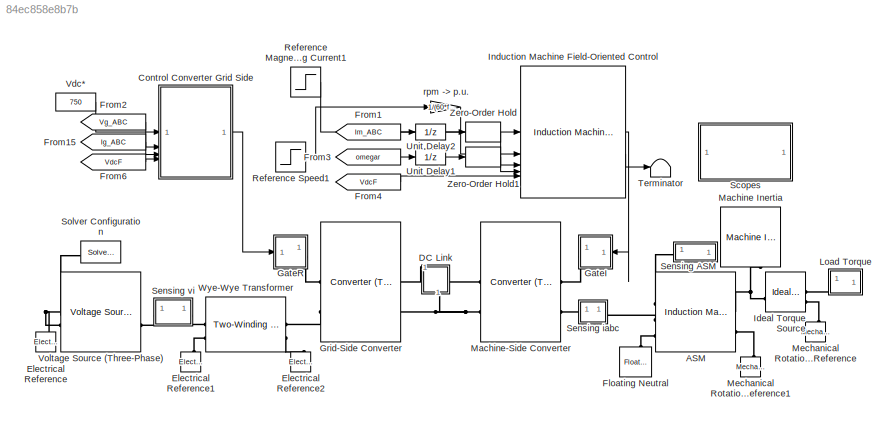
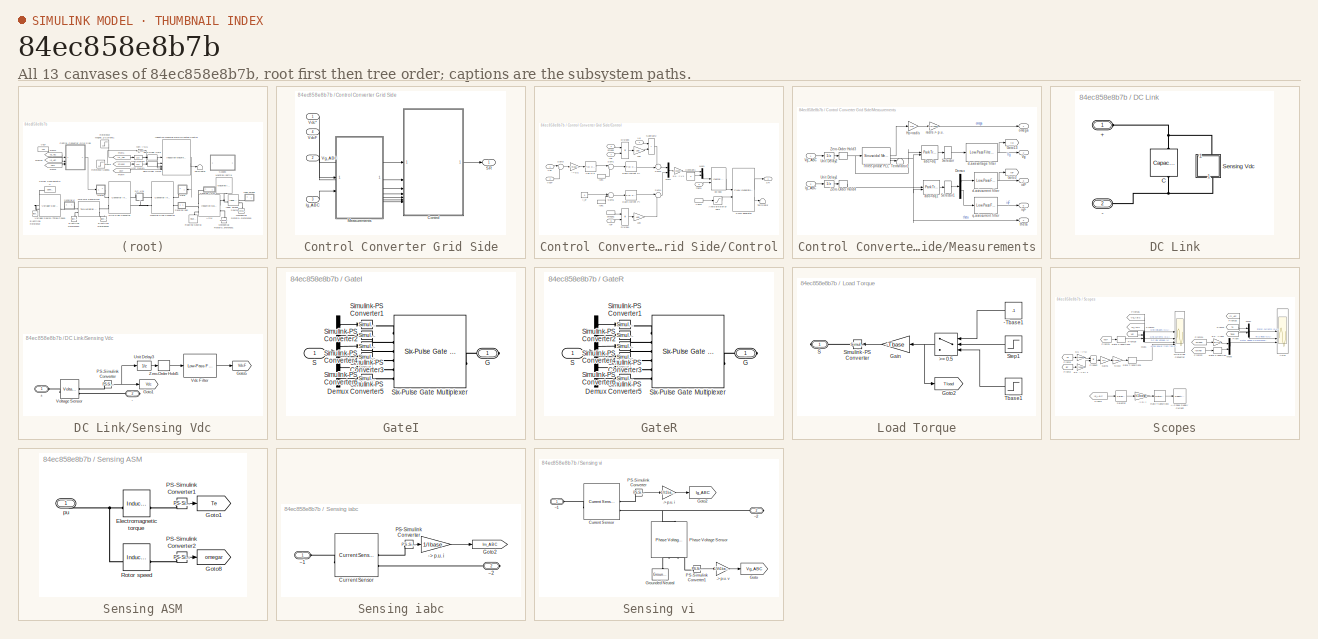
[diagram: thumbnail index - all 13 canvases of the model, root first then tree order]
MODEL slx_84ec858e8b7b
KIND model
CONFIG AbsTol = 1e-3
CONFIG EnableMultiTasking = off
CONFIG FixedStep = auto
CONFIG MaxStep = auto
CONFIG MinStep = auto
CONFIG RelTol = 1e-3
CONFIG SampleTimeConstraint = Unconstrained
CONFIG SolverName = VariableStepAuto
CONFIG StartTime = 0.0
CONFIG StopTime = 1
BLOCK [Reference] ASM  REF=ee_lib/Electromechanical/Asynchronous/Induction Machine
Squirrel Cage
  AttributesFormatString = 220 hp 550 V
  SourceBlock = ee_lib/Electromechanical/Asynchronous/Induction Machine\nSquirrel Cage
  SourceType = Induction Machine\nSquirrel Cage
BLOCK [SubSystem] Control Converter Grid Side
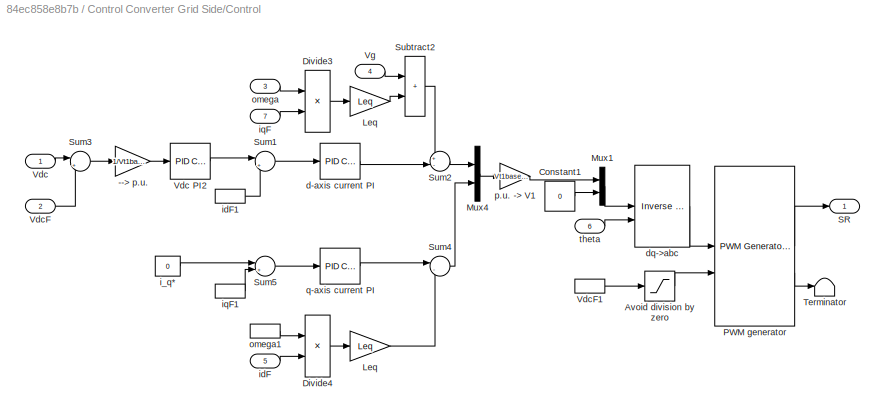
BLOCK [SubSystem] Control Converter Grid Side/Control
BLOCK [Gain] Control Converter Grid Side/Control/--> p.u.
  Gain = 1/Vt1base
BLOCK [Saturate] Control Converter Grid Side/Control/Avoid division by zero
  LowerLimit = 10
  UpperLimit = 1e6
BLOCK [Constant] Control Converter Grid Side/Control/Constant1
  SampleTime = Tsc
  Value = 0
BLOCK [Product] Control Converter Grid Side/Control/Divide3
  Inputs = **
BLOCK [Product] Control Converter Grid Side/Control/Divide4
  Inputs = **
BLOCK [Gain] Control Converter Grid Side/Control/Leq
  Gain = Leq
BLOCK [Gain] Control Converter Grid Side/Control/Leq 
  Gain = Leq
BLOCK [Mux] Control Converter Grid Side/Control/Mux1
  DisplayOption = bar
  Inputs = 2
BLOCK [Mux] Control Converter Grid Side/Control/Mux4
  DisplayOption = bar
  Inputs = 2
BLOCK [Reference] Control Converter Grid Side/Control/PWM generator  REF=eePwmGeneratorTwoLevel/PWM Generator
(Three-phase, Two-level)
  SourceBlock = eePwmGeneratorTwoLevel/PWM Generator\n(Three-phase, Two-level)
  SourceType = PWM Generator (three-phase, two-level)
BLOCK [Outport] Control Converter Grid Side/Control/SR
  VectorParamsAs1DForOutWhenUnconnected = off
BLOCK [Sum] Control Converter Grid Side/Control/Subtract2
  IconShape = rectangular
BLOCK [Sum] Control Converter Grid Side/Control/Sum1
  Inputs = |+-
BLOCK [Sum] Control Converter Grid Side/Control/Sum2
  Inputs = +-|
BLOCK [Sum] Control Converter Grid Side/Control/Sum3
  Inputs = |+-
BLOCK [Sum] Control Converter Grid Side/Control/Sum4
  Inputs = |--
BLOCK [Sum] Control Converter Grid Side/Control/Sum5
  Inputs = |+-
BLOCK [Terminator] Control Converter Grid Side/Control/Terminator
BLOCK [Inport] Control Converter Grid Side/Control/Vdc
BLOCK [Reference] Control Converter Grid Side/Control/Vdc PI2  REF=slpidlib/PID Controller
  SourceBlock = slpidlib/PID Controller
  SourceType = PID 1dof
BLOCK [Inport] Control Converter Grid Side/Control/VdcF
  Port = 2
BLOCK [InportShadow] Control Converter Grid Side/Control/VdcF1
  Port = 2
BLOCK [Inport] Control Converter Grid Side/Control/Vg
  NameLocation = top
  Port = 4
BLOCK [Reference] Control Converter Grid Side/Control/d-axis current PI  REF=slpidlib/PID Controller
  SourceBlock = slpidlib/PID Controller
  SourceType = PID 1dof
BLOCK [Reference] Control Converter Grid Side/Control/dq->abc  REF=eeTransforms/Inverse
Park Transform
  SourceBlock = eeTransforms/Inverse\nPark Transform
  SourceType = Inverse Park Transform
BLOCK [Constant] Control Converter Grid Side/Control/i_q*
  Value = 0
BLOCK [Inport] Control Converter Grid Side/Control/idF
  Port = 5
BLOCK [InportShadow] Control Converter Grid Side/Control/idF1
  Port = 5
BLOCK [Inport] Control Converter Grid Side/Control/iqF
  Port = 7
BLOCK [InportShadow] Control Converter Grid Side/Control/iqF1
  Port = 7
BLOCK [Inport] Control Converter Grid Side/Control/omega
  Port = 3
BLOCK [InportShadow] Control Converter Grid Side/Control/omega1
  Port = 3
BLOCK [Gain] Control Converter Grid Side/Control/p.u. -> V1
  Gain = Vt1base*N
BLOCK [Reference] Control Converter Grid Side/Control/q-axis current PI  REF=slpidlib/PID Controller
  SourceBlock = slpidlib/PID Controller
  SourceType = PID 1dof
BLOCK [Inport] Control Converter Grid Side/Control/theta
  Port = 6
BLOCK [Inport] Control Converter Grid Side/Ig_ABC
  Port = 3
BLOCK [SubSystem] Control Converter Grid Side/Measurements
BLOCK [Demux] Control Converter Grid Side/Measurements/Demux
  Outputs = 2
BLOCK [Goto] Control Converter Grid Side/Measurements/Goto13
  GotoTag = Vg
  TagVisibility = global
BLOCK [Goto] Control Converter Grid Side/Measurements/Goto3
  GotoTag = idF
  TagVisibility = global
BLOCK [Gain] Control Converter Grid Side/Measurements/Hz->rad//s
  Gain = 2*pi
BLOCK [Inport] Control Converter Grid Side/Measurements/Ig_ABC
  Port = 2
BLOCK [Selector] Control Converter Grid Side/Measurements/Selector
  IndexOptions = Index vector (dialog)
  Indices = [1]
  InputPortWidth = 3
  OutputSizes = 1
BLOCK [Selector] Control Converter Grid Side/Measurements/Selector1
  IndexOptions = Index vector (dialog)
  Indices = [1 2]
  InputPortWidth = 3
  OutputSizes = 1
BLOCK [Terminator] Control Converter Grid Side/Measurements/Terminator1
BLOCK [Reference] Control Converter Grid Side/Measurements/Three-phase PLL  REF=eeSinusoidalMeasurement/Sinusoidal Measurement
(PLL, Three-Phase)
  SourceBlock = eeSinusoidalMeasurement/Sinusoidal Measurement\n(PLL, Three-Phase)
  SourceType = Sinusoidal Measurement (PLL, Three-Phase)
BLOCK [UnitDelay] Control Converter Grid Side/Measurements/Unit Delay1
  HasFrameUpgradeWarning = on
  SampleTime = Ts
BLOCK [UnitDelay] Control Converter Grid Side/Measurements/Unit Delay2
  HasFrameUpgradeWarning = on
  SampleTime = Ts
BLOCK [Outport] Control Converter Grid Side/Measurements/Vg
  Port = 2
  VectorParamsAs1DForOutWhenUnconnected = off
BLOCK [Inport] Control Converter Grid Side/Measurements/Vg_ABC
BLOCK [ZeroOrderHold] Control Converter Grid Side/Measurements/Zero-Order Hold3
  SampleTime = Tsc
BLOCK [ZeroOrderHold] Control Converter Grid Side/Measurements/Zero-Order Hold4
  SampleTime = Tsc
BLOCK [Reference] Control Converter Grid Side/Measurements/abc->dq  REF=eeTransforms/Park Transform
  SourceBlock = eeTransforms/Park Transform
  SourceType = Park Transform
BLOCK [Reference] Control Converter Grid Side/Measurements/abc->dq1  REF=eeTransforms/Park Transform
  SourceBlock = eeTransforms/Park Transform
  SourceType = Park Transform
BLOCK [Reference] Control Converter Grid Side/Measurements/d-axis current filter  REF=eeGeneralControl/Low-Pass Filter
(Discrete or Continuous)
  SourceBlock = eeGeneralControl/Low-Pass Filter\n(Discrete or Continuous)
  SourceType = Low-Pass Filter (Discrete or Continuous)
BLOCK [Reference] Control Converter Grid Side/Measurements/d-axis voltage filter  REF=eeGeneralControl/Low-Pass Filter
(Discrete or Continuous)
  SourceBlock = eeGeneralControl/Low-Pass Filter\n(Discrete or Continuous)
  SourceType = Low-Pass Filter (Discrete or Continuous)
BLOCK [Outport] Control Converter Grid Side/Measurements/idF
  Port = 3
  VectorParamsAs1DForOutWhenUnconnected = off
BLOCK [Outport] Control Converter Grid Side/Measurements/iqF
  Port = 5
  VectorParamsAs1DForOutWhenUnconnected = off
BLOCK [Outport] Control Converter Grid Side/Measurements/omega
  VectorParamsAs1DForOutWhenUnconnected = off
BLOCK [Reference] Control Converter Grid Side/Measurements/q-axis current filter  REF=eeGeneralControl/Low-Pass Filter
(Discrete or Continuous)
  SourceBlock = eeGeneralControl/Low-Pass Filter\n(Discrete or Continuous)
  SourceType = Low-Pass Filter (Discrete or Continuous)
BLOCK [Gain] Control Converter Grid Side/Measurements/rad//s -> p.u.
  Gain = 1/wtbase
BLOCK [Outport] Control Converter Grid Side/Measurements/theta
  Port = 4
  VectorParamsAs1DForOutWhenUnconnected = off
BLOCK [Outport] Control Converter Grid Side/SR
  VectorParamsAs1DForOutWhenUnconnected = off
BLOCK [Inport] Control Converter Grid Side/Vdc*
BLOCK [Inport] Control Converter Grid Side/VdcF
  Port = 4
BLOCK [Inport] Control Converter Grid Side/Vg_ABC
  Port = 2
BLOCK [SubSystem] DC Link
  NameLocation = right
BLOCK [PMIOPort] DC Link/+
  Side = Left
BLOCK [PMIOPort] DC Link/-
  Port = 2
  Side = Right
BLOCK [Reference] DC Link/C  REF=fl_lib/Electrical/Electrical Elements/Capacitor
  NameLocation = right
  SourceBlock = fl_lib/Electrical/Electrical Elements/Capacitor
  SourceType = Capacitor
BLOCK [SubSystem] DC Link/Sensing Vdc
  NameLocation = right
BLOCK [PMIOPort] DC Link/Sensing Vdc/+
  Side = Left
BLOCK [PMIOPort] DC Link/Sensing Vdc/-
  Port = 2
  Side = Right
BLOCK [Goto] DC Link/Sensing Vdc/Goto1
  GotoTag = Vdc
  TagVisibility = global
BLOCK [Goto] DC Link/Sensing Vdc/Goto5
  GotoTag = VdcF
  TagVisibility = global
BLOCK [Reference] DC Link/Sensing Vdc/PS-Simulink Converter  REF=nesl_utility/PS-Simulink
Converter
  SourceBlock = nesl_utility/PS-Simulink\nConverter
  SourceType = PS-Simulink\nConverter
BLOCK [UnitDelay] DC Link/Sensing Vdc/Unit Delay3
  HasFrameUpgradeWarning = on
  SampleTime = Ts
BLOCK [Reference] DC Link/Sensing Vdc/Vdc Filter  REF=eeGeneralControl/Low-Pass Filter
(Discrete or Continuous)
  SourceBlock = eeGeneralControl/Low-Pass Filter\n(Discrete or Continuous)
  SourceType = Low-Pass Filter (Discrete or Continuous)
BLOCK [Reference] DC Link/Sensing Vdc/Voltage Sensor  REF=fl_lib/Electrical/Electrical Sensors/Voltage Sensor
  SourceBlock = fl_lib/Electrical/Electrical Sensors/Voltage Sensor
  SourceType = Voltage Sensor
BLOCK [ZeroOrderHold] DC Link/Sensing Vdc/Zero-Order Hold5
  SampleTime = Tsc
BLOCK [Reference] Electrical Reference  REF=fl_lib/Electrical/Electrical Elements/Electrical Reference
  NameLocation = right
  SourceBlock = fl_lib/Electrical/Electrical Elements/Electrical Reference
  SourceType = Electrical Reference
BLOCK [Reference] Electrical Reference1  REF=fl_lib/Electrical/Electrical Elements/Electrical Reference
  NameLocation = right
  SourceBlock = fl_lib/Electrical/Electrical Elements/Electrical Reference
  SourceType = Electrical Reference
BLOCK [Reference] Electrical Reference2  REF=fl_lib/Electrical/Electrical Elements/Electrical Reference
  NameLocation = right
  SourceBlock = fl_lib/Electrical/Electrical Elements/Electrical Reference
  SourceType = Electrical Reference
BLOCK [Reference] Floating Neutral  REF=ee_lib/Connectors &
References/Floating Neutral
(Three-Phase)
  NameLocation = right
  SourceBlock = ee_lib/Connectors &\nReferences/Floating Neutral\n(Three-Phase)
  SourceType = Floating Neutral\n(Three-Phase)
BLOCK [From] From1
  GotoTag = Im_ABC
  TagVisibility = global
BLOCK [From] From15
  GotoTag = Ig_ABC
  TagVisibility = global
BLOCK [From] From2
  GotoTag = Vg_ABC
  TagVisibility = global
BLOCK [From] From3
  GotoTag = omegar
  TagVisibility = global
BLOCK [From] From4
  GotoTag = VdcF
  TagVisibility = global
BLOCK [From] From6
  GotoTag = VdcF
  TagVisibility = global
BLOCK [SubSystem] GateI
BLOCK [Demux] GateI/Demux
  Outputs = 6
BLOCK [PMIOPort] GateI/G
  Side = Right
BLOCK [Inport] GateI/S
BLOCK [Reference] GateI/Simulink-PS Converter1  REF=nesl_utility/Simulink-PS
Converter
  SourceBlock = nesl_utility/Simulink-PS\nConverter
  SourceType = Simulink-PS\nConverter
BLOCK [Reference] GateI/Simulink-PS Converter2  REF=nesl_utility/Simulink-PS
Converter
  SourceBlock = nesl_utility/Simulink-PS\nConverter
  SourceType = Simulink-PS\nConverter
BLOCK [Reference] GateI/Simulink-PS Converter3  REF=nesl_utility/Simulink-PS
Converter
  SourceBlock = nesl_utility/Simulink-PS\nConverter
  SourceType = Simulink-PS\nConverter
BLOCK [Reference] GateI/Simulink-PS Converter4  REF=nesl_utility/Simulink-PS
Converter
  SourceBlock = nesl_utility/Simulink-PS\nConverter
  SourceType = Simulink-PS\nConverter
BLOCK [Reference] GateI/Simulink-PS Converter5  REF=nesl_utility/Simulink-PS
Converter
  SourceBlock = nesl_utility/Simulink-PS\nConverter
  SourceType = Simulink-PS\nConverter
BLOCK [Reference] GateI/Simulink-PS Converter6  REF=nesl_utility/Simulink-PS
Converter
  SourceBlock = nesl_utility/Simulink-PS\nConverter
  SourceType = Simulink-PS\nConverter
BLOCK [Reference] GateI/Six-Pulse Gate Multiplexer  REF=ee_lib/Semiconductors &
Converters/Converters/Six-Pulse Gate
Multiplexer
  SourceBlock = ee_lib/Semiconductors &\nConverters/Converters/Six-Pulse Gate\nMultiplexer
  SourceType = Six-Pulse Gate\nMultiplexer
BLOCK [SubSystem] GateR
BLOCK [Demux] GateR/Demux
  Outputs = 6
BLOCK [PMIOPort] GateR/G
  Side = Right
BLOCK [Inport] GateR/S
BLOCK [Reference] GateR/Simulink-PS Converter1  REF=nesl_utility/Simulink-PS
Converter
  SourceBlock = nesl_utility/Simulink-PS\nConverter
  SourceType = Simulink-PS\nConverter
BLOCK [Reference] GateR/Simulink-PS Converter2  REF=nesl_utility/Simulink-PS
Converter
  SourceBlock = nesl_utility/Simulink-PS\nConverter
  SourceType = Simulink-PS\nConverter
BLOCK [Reference] GateR/Simulink-PS Converter3  REF=nesl_utility/Simulink-PS
Converter
  SourceBlock = nesl_utility/Simulink-PS\nConverter
  SourceType = Simulink-PS\nConverter
BLOCK [Reference] GateR/Simulink-PS Converter4  REF=nesl_utility/Simulink-PS
Converter
  SourceBlock = nesl_utility/Simulink-PS\nConverter
  SourceType = Simulink-PS\nConverter
BLOCK [Reference] GateR/Simulink-PS Converter5  REF=nesl_utility/Simulink-PS
Converter
  SourceBlock = nesl_utility/Simulink-PS\nConverter
  SourceType = Simulink-PS\nConverter
BLOCK [Reference] GateR/Simulink-PS Converter6  REF=nesl_utility/Simulink-PS
Converter
  SourceBlock = nesl_utility/Simulink-PS\nConverter
  SourceType = Simulink-PS\nConverter
BLOCK [Reference] GateR/Six-Pulse Gate Multiplexer  REF=ee_lib/Semiconductors &
Converters/Converters/Six-Pulse Gate
Multiplexer
  SourceBlock = ee_lib/Semiconductors &\nConverters/Converters/Six-Pulse Gate\nMultiplexer
  SourceType = Six-Pulse Gate\nMultiplexer
BLOCK [Reference] Grid-Side Converter  REF=ee_lib/Semiconductors &
Converters/Converters/Converter
(Three-Phase)
  SourceBlock = ee_lib/Semiconductors &\nConverters/Converters/Converter\n(Three-Phase)
  SourceType = Converter\n(Three-Phase)
BLOCK [Reference] Ideal Torque Source  REF=fl_lib/Mechanical/Mechanical Sources/Ideal Torque Source
  SourceBlock = fl_lib/Mechanical/Mechanical Sources/Ideal Torque Source
  SourceType = Ideal Torque Source
BLOCK [Reference] Induction Machine Field-Oriented Control  REF=eeAsmFieldOrientedControl/Induction Machine
Field-Oriented Control
  LibrarySourceBlock = ee_sl_lib/Induction Machine\nControl/Induction Machine\nField-Oriented Control
  NameLocation = top
  SourceBlock = eeAsmFieldOrientedControl/Induction Machine\nField-Oriented Control
  SourceType = Induction Machine Field-Oriented Control
BLOCK [SubSystem] Load Torque
  NameLocation = top
BLOCK [Constant] Load Torque/-Tbase1
  SampleTime = Ts
  Value = -1
BLOCK [Switch] Load Torque/>= 0.5 
  InputSameDT = off
  SaturateOnIntegerOverflow = off
  Threshold = 0.5
BLOCK [Gain] Load Torque/Gain
  Gain = -Tbase
BLOCK [Goto] Load Torque/Goto2
  GotoTag = Tload
  TagVisibility = global
BLOCK [PMIOPort] Load Torque/S
  Side = Right
BLOCK [Reference] Load Torque/Simulink-PS Converter  REF=nesl_utility/Simulink-PS
Converter
  SourceBlock = nesl_utility/Simulink-PS\nConverter
  SourceType = Simulink-PS\nConverter
BLOCK [Step] Load Torque/Step1
  AttributesFormatString = 1 at 2.1 s
  SampleTime = Ts
  Time = 2.1
BLOCK [Step] Load Torque/Tbase1
  AttributesFormatString = 1 p.u. at 1.6 s
  SampleTime = Ts
  Time = 1.6
BLOCK [Reference] Machine Inertia  REF=ee_lib/Electromechanical/Mechanical/Machine
Inertia
  NameLocation = right
  SourceBlock = ee_lib/Electromechanical/Mechanical/Machine\nInertia
  SourceType = Machine\nInertia
BLOCK [Reference] Machine-Side Converter  REF=ee_lib/Semiconductors &
Converters/Converters/Converter
(Three-Phase)
  SourceBlock = ee_lib/Semiconductors &\nConverters/Converters/Converter\n(Three-Phase)
  SourceType = Converter\n(Three-Phase)
BLOCK [Reference] Mechanical Rotational Reference  REF=fl_lib/Mechanical/Rotational Elements/Mechanical
Rotational Reference
  NameLocation = right
  SourceBlock = fl_lib/Mechanical/Rotational Elements/Mechanical\nRotational Reference
  SourceType = Mechanical\nRotational Reference
BLOCK [Reference] Mechanical Rotational Reference1  REF=fl_lib/Mechanical/Rotational Elements/Mechanical
Rotational Reference
  NameLocation = right
  SourceBlock = fl_lib/Mechanical/Rotational Elements/Mechanical\nRotational Reference
  SourceType = Mechanical\nRotational Reference
BLOCK [Step] Reference Magnetizing Current1
  After = 0.7*1/Lm
  AttributesFormatString = 0.7 p.u. at 0.4 s
  NameLocation = top
  SampleTime = Tsc
  Time = 0.4
BLOCK [Step] Reference Speed1
  After = 1600
  AttributesFormatString = %<After> rpm at %<Time> s
  SampleTime = Tsc
  Time = 0.4
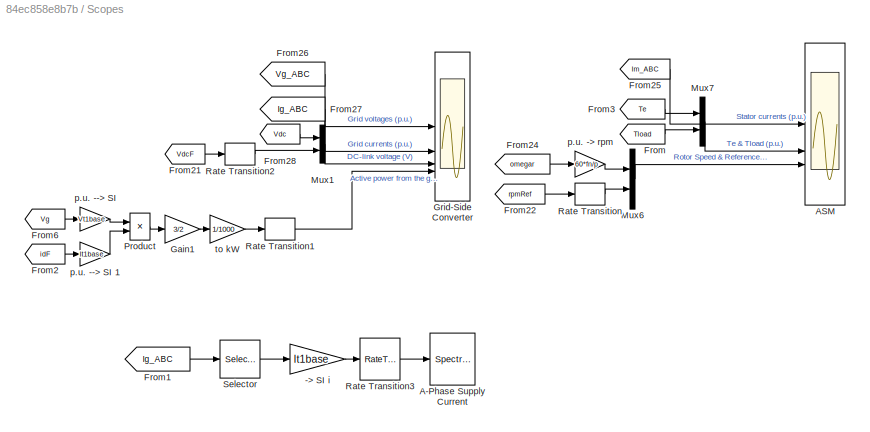
BLOCK [SubSystem] Scopes
BLOCK [Gain] Scopes/-> SI i
  Gain = It1base
BLOCK [SpectrumAnalyzer] Scopes/A-Phase Supply Current
  AllowFFTLengthLessThanSamplesPerUpdate = on
  AveragingMethod = Running
  AxesScaling = Manual
  CenterFrequency = 2500
  GraphicalSettings = {"GraphicalSettings":{"Style":{"BackgroundColor":[0.12941176470588237,0.12941176470588237,0.12941176470588237],"AxesColor":[0,0,0],"LabelsColor":[0.6862745098039216,0.6862745098039216,0.6862745098039216],"PreserveColors":false,"Visible":[true],"LineStyle":["-"],"LineColor":[[1,0.9098039215686274,0.39215686274509803]],"LineWidth":[0.5],"Marker":["none"],"FontSize":"small"},"Cursors":{"Enabled":fals...<+888ch>
  Method = Welch
  OverlapPercent = 90
  PlotAsTwoSidedSpectrum = off
  RBW = 9
  RBWSource = Property
  ScopeFrameLocation = window
  ScopeSpecificationString = spbscopes.SpectrumAnalyzerBlockCfg('CurrentConfiguration', extmgr.ConfigurationSet(extmgr.Configuration('Core','General UI',true),extmgr.Configuration('Core','Source UI',true),extmgr.Configuration('Sources','WiredSimulink',true),extmgr.Configuration('Sources','File',false),extmgr.Configuration('Sources','Workspace',false),extmgr.Configuration('Sources','Streaming',false),extmgr.Configuration('Sour...<+3226ch>
  Span = 5000
  SpectrumType = RMS
  SpectrumUnits = Vrms
  StartFrequency = 0
  WasSavedAsWebScope = on
  WindowPosition = [59.000000,226.000000,1030.000000,450.000000,]
  YLimits = [-26.51463427091184144,238.65811618859046916]
BLOCK [Scope] Scopes/ASM
  Floating = off
  NumInputPorts = 3
  ScopeSpecificationString = Simulink.scopes.TimeScopeBlockCfg('CurrentConfiguration', extmgr.ConfigurationSet(extmgr.Configuration('Core','General UI',true),extmgr.Configuration('Core','Source UI',true),extmgr.Configuration('Sources','WiredSimulink',true,'DataLoggingVariableName','ScopeData2'),extmgr.Configuration('Visuals','Time Domain',true,'SerializedDisplays',{struct('MinYLimReal','-2.71312','MaxYLimReal','2.71519','YLab...<+3209ch>
BLOCK [From] Scopes/From
  GotoTag = Tload
  TagVisibility = global
BLOCK [From] Scopes/From1
  GotoTag = Ig_ABC
  TagVisibility = global
BLOCK [From] Scopes/From2
  GotoTag = idF
  TagVisibility = global
BLOCK [From] Scopes/From21
  GotoTag = VdcF
  TagVisibility = global
BLOCK [From] Scopes/From22
  GotoTag = rpmRef
BLOCK [From] Scopes/From24
  GotoTag = omegar
  TagVisibility = global
BLOCK [From] Scopes/From25
  GotoTag = Im_ABC
  TagVisibility = global
BLOCK [From] Scopes/From26
  GotoTag = Vg_ABC
  TagVisibility = global
BLOCK [From] Scopes/From27
  GotoTag = Ig_ABC
  TagVisibility = global
BLOCK [From] Scopes/From28
  GotoTag = Vdc
  TagVisibility = global
BLOCK [From] Scopes/From3
  GotoTag = Te
  TagVisibility = global
BLOCK [From] Scopes/From6
  GotoTag = Vg
  TagVisibility = global
BLOCK [Gain] Scopes/Gain1
  Gain = 3/2
BLOCK [Scope] Scopes/Grid-Side Converter
  Floating = off
  NumInputPorts = 4
  ScopeSpecificationString = Simulink.scopes.TimeScopeBlockCfg('CurrentConfiguration', extmgr.ConfigurationSet(extmgr.Configuration('Core','General UI',true),extmgr.Configuration('Core','Source UI',true),extmgr.Configuration('Sources','WiredSimulink',true,'DataLoggingVariableName','ScopeData1'),extmgr.Configuration('Visuals','Time Domain',true,'SerializedDisplays',{struct('MinYLimReal','-1.25','MaxYLimReal','1.25','YLabelReal...<+3992ch>
BLOCK [Mux] Scopes/Mux1
  DisplayOption = bar
  Inputs = 2
BLOCK [Mux] Scopes/Mux6
  DisplayOption = bar
  Inputs = 2
BLOCK [Mux] Scopes/Mux7
  DisplayOption = bar
  Inputs = 2
BLOCK [Product] Scopes/Product
BLOCK [RateTransition] Scopes/Rate Transition
BLOCK [RateTransition] Scopes/Rate Transition1
BLOCK [RateTransition] Scopes/Rate Transition2
BLOCK [RateTransition] Scopes/Rate Transition3
  OutPortSampleTime = 1e-4
BLOCK [Selector] Scopes/Selector
  IndexOptions = Index vector (dialog)
  Indices = 1
  InputPortWidth = 3
  OutputSizes = 1
BLOCK [Gain] Scopes/p.u. --> SI
  Gain = Vt1base
BLOCK [Gain] Scopes/p.u. --> SI 1
  Gain = It1base
BLOCK [Gain] Scopes/p.u. -> rpm
  Gain = 60*fn/p
BLOCK [Gain] Scopes/to kW
  Gain = 1/1000
BLOCK [SubSystem] Sensing ASM
BLOCK [Reference] Sensing ASM/Electromagnetic torque  REF=ee_lib/Electromechanical/Asynchronous/Induction Machine
Measurement
  SourceBlock = ee_lib/Electromechanical/Asynchronous/Induction Machine\nMeasurement
  SourceType = Induction Machine\nMeasurement
BLOCK [Goto] Sensing ASM/Goto1
  GotoTag = Te
  TagVisibility = global
BLOCK [Goto] Sensing ASM/Goto8
  GotoTag = omegar
  TagVisibility = global
BLOCK [Reference] Sensing ASM/PS-Simulink Converter1  REF=nesl_utility/PS-Simulink
Converter
  SourceBlock = nesl_utility/PS-Simulink\nConverter
  SourceType = PS-Simulink\nConverter
BLOCK [Reference] Sensing ASM/PS-Simulink Converter2  REF=nesl_utility/PS-Simulink
Converter
  SourceBlock = nesl_utility/PS-Simulink\nConverter
  SourceType = PS-Simulink\nConverter
BLOCK [Reference] Sensing ASM/Rotor speed  REF=ee_lib/Electromechanical/Asynchronous/Induction Machine
Measurement
  SourceBlock = ee_lib/Electromechanical/Asynchronous/Induction Machine\nMeasurement
  SourceType = Induction Machine\nMeasurement
BLOCK [PMIOPort] Sensing ASM/pu
  Side = Right
BLOCK [SubSystem] Sensing iabc
BLOCK [Gain] Sensing iabc/-> p.u. i
  Gain = 1/Ibase
BLOCK [Reference] Sensing iabc/Current Sensor  REF=ee_lib/Sensors &
Transducers/Current Sensor
(Three-Phase)
  SourceBlock = ee_lib/Sensors &\nTransducers/Current Sensor\n(Three-Phase)
  SourceType = Current Sensor\n(Three-Phase)
BLOCK [Goto] Sensing iabc/Goto2
  GotoTag = Im_ABC
  TagVisibility = global
BLOCK [Reference] Sensing iabc/PS-Simulink Converter  REF=nesl_utility/PS-Simulink
Converter
  SourceBlock = nesl_utility/PS-Simulink\nConverter
  SourceType = PS-Simulink\nConverter
BLOCK [PMIOPort] Sensing iabc/~1
  Side = Left
BLOCK [PMIOPort] Sensing iabc/~2
  Port = 2
  Side = Right
BLOCK [SubSystem] Sensing vi
BLOCK [Gain] Sensing vi/-> p.u. i
  Gain = 1/It1base
BLOCK [Gain] Sensing vi/-> p.u. v
  Gain = 1/Vt1base
BLOCK [Reference] Sensing vi/Current Sensor  REF=ee_lib/Sensors &
Transducers/Current Sensor
(Three-Phase)
  SourceBlock = ee_lib/Sensors &\nTransducers/Current Sensor\n(Three-Phase)
  SourceType = Current Sensor\n(Three-Phase)
BLOCK [Goto] Sensing vi/Goto
  GotoTag = Vg_ABC
  TagVisibility = global
BLOCK [Goto] Sensing vi/Goto2
  GotoTag = Ig_ABC
  TagVisibility = global
BLOCK [Reference] Sensing vi/Grounded Neutral  REF=ee_lib/Connectors &
References/Grounded Neutral
(Three-Phase)
  NameLocation = left
  SourceBlock = ee_lib/Connectors &\nReferences/Grounded Neutral\n(Three-Phase)
  SourceType = Grounded Neutral\n(Three-Phase)
BLOCK [Reference] Sensing vi/PS-Simulink Converter  REF=nesl_utility/PS-Simulink
Converter
  SourceBlock = nesl_utility/PS-Simulink\nConverter
  SourceType = PS-Simulink\nConverter
BLOCK [Reference] Sensing vi/PS-Simulink Converter1  REF=nesl_utility/PS-Simulink
Converter
  SourceBlock = nesl_utility/PS-Simulink\nConverter
  SourceType = PS-Simulink\nConverter
BLOCK [Reference] Sensing vi/Phase Voltage Sensor  REF=ee_lib/Sensors &
Transducers/Phase Voltage Sensor
(Three-Phase)
  NameLocation = right
  SourceBlock = ee_lib/Sensors &\nTransducers/Phase Voltage Sensor\n(Three-Phase)
  SourceType = Phase Voltage Sensor\n(Three-Phase)
BLOCK [PMIOPort] Sensing vi/~1
  Side = Left
BLOCK [PMIOPort] Sensing vi/~2
  Port = 2
  Side = Right
BLOCK [Reference] Solver Configuration  REF=nesl_utility/Solver
Configuration
  SourceBlock = nesl_utility/Solver\nConfiguration
  SourceType = Solver\nConfiguration
BLOCK [Terminator] Terminator
BLOCK [UnitDelay] Unit Delay1
  HasFrameUpgradeWarning = on
  SampleTime = Ts
BLOCK [UnitDelay] Unit Delay2
  HasFrameUpgradeWarning = on
  SampleTime = Ts
BLOCK [Constant] Vdc*
  Value = 750
BLOCK [Reference] Voltage Source (Three-Phase)  REF=ee_lib/Sources/Voltage
Source
(Three-Phase)
  AttributesFormatString = %<vline_rms> %<vline_rms_unit> ph-ph\n%<freq> %<freq_unit>
  SourceBlock = ee_lib/Sources/Voltage\nSource\n(Three-Phase)
  SourceType = Voltage\nSource\n(Three-Phase)
BLOCK [Reference] Wye-Wye Transformer  REF=ee_lib/Passive/Transformers/Two-Winding
Transformer
(Three-Phase)
  AttributesFormatString = 200 kVA\n460 V / 400 V
  SourceBlock = ee_lib/Passive/Transformers/Two-Winding\nTransformer\n(Three-Phase)
  SourceType = Two-Winding\nTransformer\n(Three-Phase)
BLOCK [ZeroOrderHold] Zero-Order Hold
  SampleTime = Tsc
BLOCK [ZeroOrderHold] Zero-Order Hold1
  SampleTime = Tsc
BLOCK [Gain] rpm -> p.u.
  Gain = 1/(60*fn/p)
  NameLocation = top
LINE Control Converter Grid Side/Control/--> p.u.:1 -> Control Converter Grid Side/Control/Vdc PI2:1
LINE Control Converter Grid Side/Control/Avoid division by zero:1 -> Control Converter Grid Side/Control/PWM generator:2
LINE Control Converter Grid Side/Control/Constant1:1 -> Control Converter Grid Side/Control/Mux1:2
LINE Control Converter Grid Side/Control/Divide3:1 -> Control Converter Grid Side/Control/Leq:1
LINE Control Converter Grid Side/Control/Divide4:1 -> Control Converter Grid Side/Control/Leq :1
LINE Control Converter Grid Side/Control/Leq :1 -> Control Converter Grid Side/Control/Sum4:2
LINE Control Converter Grid Side/Control/Leq:1 -> Control Converter Grid Side/Control/Subtract2:2
LINE Control Converter Grid Side/Control/Mux1:1 -> Control Converter Grid Side/Control/dq->abc:1
LINE Control Converter Grid Side/Control/Mux4:1 -> Control Converter Grid Side/Control/p.u. -> V1:1
LINE Control Converter Grid Side/Control/PWM generator:1 -> Control Converter Grid Side/Control/SR:1
LINE Control Converter Grid Side/Control/PWM generator:2 -> Control Converter Grid Side/Control/Terminator:1
LINE Control Converter Grid Side/Control/Subtract2:1 -> Control Converter Grid Side/Control/Sum2:1
LINE Control Converter Grid Side/Control/Sum1:1 -> Control Converter Grid Side/Control/d-axis current PI:1
LINE Control Converter Grid Side/Control/Sum2:1 -> Control Converter Grid Side/Control/Mux4:1
LINE Control Converter Grid Side/Control/Sum3:1 -> Control Converter Grid Side/Control/--> p.u.:1
LINE Control Converter Grid Side/Control/Sum4:1 -> Control Converter Grid Side/Control/Mux4:2
LINE Control Converter Grid Side/Control/Sum5:1 -> Control Converter Grid Side/Control/q-axis current PI:1
LINE Control Converter Grid Side/Control/Vdc PI2:1 -> Control Converter Grid Side/Control/Sum1:1
LINE Control Converter Grid Side/Control/Vdc:1 -> Control Converter Grid Side/Control/Sum3:1
LINE Control Converter Grid Side/Control/VdcF1:1 -> Control Converter Grid Side/Control/Avoid division by zero:1
LINE Control Converter Grid Side/Control/VdcF:1 -> Control Converter Grid Side/Control/Sum3:2
LINE Control Converter Grid Side/Control/Vg:1 -> Control Converter Grid Side/Control/Subtract2:1
LINE Control Converter Grid Side/Control/d-axis current PI:1 -> Control Converter Grid Side/Control/Sum2:2
LINE Control Converter Grid Side/Control/dq->abc:1 -> Control Converter Grid Side/Control/PWM generator:1
LINE Control Converter Grid Side/Control/i_q*:1 -> Control Converter Grid Side/Control/Sum5:1
LINE Control Converter Grid Side/Control/idF1:1 -> Control Converter Grid Side/Control/Sum1:2
LINE Control Converter Grid Side/Control/idF:1 -> Control Converter Grid Side/Control/Divide4:2
LINE Control Converter Grid Side/Control/iqF1:1 -> Control Converter Grid Side/Control/Sum5:2
LINE Control Converter Grid Side/Control/iqF:1 -> Control Converter Grid Side/Control/Divide3:2
LINE Control Converter Grid Side/Control/omega1:1 -> Control Converter Grid Side/Control/Divide4:1
LINE Control Converter Grid Side/Control/omega:1 -> Control Converter Grid Side/Control/Divide3:1
LINE Control Converter Grid Side/Control/p.u. -> V1:1 -> Control Converter Grid Side/Control/Mux1:1
LINE Control Converter Grid Side/Control/q-axis current PI:1 -> Control Converter Grid Side/Control/Sum4:1
LINE Control Converter Grid Side/Control/theta:1 -> Control Converter Grid Side/Control/dq->abc:2
LINE Control Converter Grid Side/Control:1 -> Control Converter Grid Side/SR:1
LINE Control Converter Grid Side/Ig_ABC:1 -> Control Converter Grid Side/Measurements:2
LINE Control Converter Grid Side/Measurements/Demux:1 -> Control Converter Grid Side/Measurements/d-axis current filter:1
LINE Control Converter Grid Side/Measurements/Demux:2 -> Control Converter Grid Side/Measurements/q-axis current filter:1
LINE Control Converter Grid Side/Measurements/Hz->rad//s:1 -> Control Converter Grid Side/Measurements/rad//s -> p.u.:1
LINE Control Converter Grid Side/Measurements/Ig_ABC:1 -> Control Converter Grid Side/Measurements/Unit Delay1:1
LINE Control Converter Grid Side/Measurements/Selector1:1 -> Control Converter Grid Side/Measurements/Demux:1
LINE Control Converter Grid Side/Measurements/Selector:1 -> Control Converter Grid Side/Measurements/d-axis voltage filter:1
LINE Control Converter Grid Side/Measurements/Three-phase PLL:1 -> Control Converter Grid Side/Measurements/Hz->rad//s:1
NET Control Converter Grid Side/Measurements/Three-phase PLL:2 -> Control Converter Grid Side/Measurements/abc->dq1:2, Control Converter Grid Side/Measurements/abc->dq:2, Control Converter Grid Side/Measurements/theta:1
LINE Control Converter Grid Side/Measurements/Three-phase PLL:3 -> Control Converter Grid Side/Measurements/Terminator1:1
LINE Control Converter Grid Side/Measurements/Unit Delay1:1 -> Control Converter Grid Side/Measurements/Zero-Order Hold4:1
LINE Control Converter Grid Side/Measurements/Unit Delay2:1 -> Control Converter Grid Side/Measurements/Zero-Order Hold3:1
LINE Control Converter Grid Side/Measurements/Vg_ABC:1 -> Control Converter Grid Side/Measurements/Unit Delay2:1
NET Control Converter Grid Side/Measurements/Zero-Order Hold3:1 -> Control Converter Grid Side/Measurements/Three-phase PLL:1, Control Converter Grid Side/Measurements/abc->dq:1
LINE Control Converter Grid Side/Measurements/Zero-Order Hold4:1 -> Control Converter Grid Side/Measurements/abc->dq1:1
LINE Control Converter Grid Side/Measurements/abc->dq1:1 -> Control Converter Grid Side/Measurements/Selector1:1
LINE Control Converter Grid Side/Measurements/abc->dq:1 -> Control Converter Grid Side/Measurements/Selector:1
NET Control Converter Grid Side/Measurements/d-axis current filter:1 -> Control Converter Grid Side/Measurements/Goto3:1, Control Converter Grid Side/Measurements/idF:1
NET Control Converter Grid Side/Measurements/d-axis voltage filter:1 -> Control Converter Grid Side/Measurements/Goto13:1, Control Converter Grid Side/Measurements/Vg:1
LINE Control Converter Grid Side/Measurements/q-axis current filter:1 -> Control Converter Grid Side/Measurements/iqF:1
LINE Control Converter Grid Side/Measurements/rad//s -> p.u.:1 -> Control Converter Grid Side/Measurements/omega:1
LINE Control Converter Grid Side/Measurements:1 -> Control Converter Grid Side/Control:3
LINE Control Converter Grid Side/Measurements:2 -> Control Converter Grid Side/Control:4
LINE Control Converter Grid Side/Measurements:3 -> Control Converter Grid Side/Control:5
LINE Control Converter Grid Side/Measurements:4 -> Control Converter Grid Side/Control:6
LINE Control Converter Grid Side/Measurements:5 -> Control Converter Grid Side/Control:7
LINE Control Converter Grid Side/Vdc*:1 -> Control Converter Grid Side/Control:1
LINE Control Converter Grid Side/VdcF:1 -> Control Converter Grid Side/Control:2
LINE Control Converter Grid Side/Vg_ABC:1 -> Control Converter Grid Side/Measurements:1
LINE Control Converter Grid Side:1 -> GateR:1
NET DC Link/Sensing Vdc/PS-Simulink Converter:1 -> DC Link/Sensing Vdc/Goto1:1, DC Link/Sensing Vdc/Unit Delay3:1
LINE DC Link/Sensing Vdc/Unit Delay3:1 -> DC Link/Sensing Vdc/Zero-Order Hold5:1
LINE DC Link/Sensing Vdc/Vdc Filter:1 -> DC Link/Sensing Vdc/Goto5:1
LINE DC Link/Sensing Vdc/Zero-Order Hold5:1 -> DC Link/Sensing Vdc/Vdc Filter:1
LINE From15:1 -> Control Converter Grid Side:3
LINE From1:1 -> Unit Delay2:1
LINE From2:1 -> Control Converter Grid Side:2
LINE From3:1 -> Unit Delay1:1
LINE From4:1 -> Induction Machine Field-Oriented Control:5
LINE From6:1 -> Control Converter Grid Side:4
LINE GateI/Demux:1 -> GateI/Simulink-PS Converter1:1
LINE GateI/Demux:2 -> GateI/Simulink-PS Converter2:1
LINE GateI/Demux:3 -> GateI/Simulink-PS Converter3:1
LINE GateI/Demux:4 -> GateI/Simulink-PS Converter4:1
LINE GateI/Demux:5 -> GateI/Simulink-PS Converter5:1
LINE GateI/Demux:6 -> GateI/Simulink-PS Converter6:1
LINE GateI/S:1 -> GateI/Demux:1
LINE GateR/Demux:1 -> GateR/Simulink-PS Converter1:1
LINE GateR/Demux:2 -> GateR/Simulink-PS Converter2:1
LINE GateR/Demux:3 -> GateR/Simulink-PS Converter3:1
LINE GateR/Demux:4 -> GateR/Simulink-PS Converter4:1
LINE GateR/Demux:5 -> GateR/Simulink-PS Converter5:1
LINE GateR/Demux:6 -> GateR/Simulink-PS Converter6:1
LINE GateR/S:1 -> GateR/Demux:1
LINE Induction Machine Field-Oriented Control:1 -> GateI:1
LINE Induction Machine Field-Oriented Control:2 -> Terminator:1
LINE Load Torque/-Tbase1:1 -> Load Torque/>= 0.5 :1
NET Load Torque/>= 0.5 :1 -> Load Torque/Gain:1, Load Torque/Goto2:1
LINE Load Torque/Gain:1 -> Load Torque/Simulink-PS Converter:1
LINE Load Torque/Step1:1 -> Load Torque/>= 0.5 :2
LINE Load Torque/Tbase1:1 -> Load Torque/>= 0.5 :3
LINE Reference Magnetizing Current1:1 -> Induction Machine Field-Oriented Control:1
LINE Reference Speed1:1 -> rpm -> p.u.:1
LINE Scopes/-> SI i:1 -> Scopes/Rate Transition3:1
LINE Scopes/From1:1 -> Scopes/Selector:1
LINE Scopes/From21:1 -> Scopes/Rate Transition2:1
LINE Scopes/From22:1 -> Scopes/Rate Transition:1
LINE Scopes/From24:1 -> Scopes/p.u. -> rpm:1
LINE Scopes/From25:1 -> Scopes/ASM:1
LINE Scopes/From26:1 -> Scopes/Grid-Side Converter:1
LINE Scopes/From27:1 -> Scopes/Grid-Side Converter:2
LINE Scopes/From28:1 -> Scopes/Mux1:1
LINE Scopes/From2:1 -> Scopes/p.u. --> SI 1:1
LINE Scopes/From3:1 -> Scopes/Mux7:1
LINE Scopes/From6:1 -> Scopes/p.u. --> SI:1
LINE Scopes/From:1 -> Scopes/Mux7:2
LINE Scopes/Gain1:1 -> Scopes/to kW:1
LINE Scopes/Mux1:1 -> Scopes/Grid-Side Converter:3
LINE Scopes/Mux6:1 -> Scopes/ASM:3
LINE Scopes/Mux7:1 -> Scopes/ASM:2
LINE Scopes/Product:1 -> Scopes/Gain1:1
LINE Scopes/Rate Transition1:1 -> Scopes/Grid-Side Converter:4
LINE Scopes/Rate Transition2:1 -> Scopes/Mux1:2
LINE Scopes/Rate Transition3:1 -> Scopes/A-Phase Supply Current:1
LINE Scopes/Rate Transition:1 -> Scopes/Mux6:2
LINE Scopes/Selector:1 -> Scopes/-> SI i:1
LINE Scopes/p.u. --> SI 1:1 -> Scopes/Product:2
LINE Scopes/p.u. --> SI:1 -> Scopes/Product:1
LINE Scopes/p.u. -> rpm:1 -> Scopes/Mux6:1
LINE Scopes/to kW:1 -> Scopes/Rate Transition1:1
LINE Sensing ASM/PS-Simulink Converter1:1 -> Sensing ASM/Goto1:1
LINE Sensing ASM/PS-Simulink Converter2:1 -> Sensing ASM/Goto8:1
LINE Sensing iabc/-> p.u. i:1 -> Sensing iabc/Goto2:1
LINE Sensing iabc/PS-Simulink Converter:1 -> Sensing iabc/-> p.u. i:1
LINE Sensing vi/-> p.u. i:1 -> Sensing vi/Goto2:1
LINE Sensing vi/-> p.u. v:1 -> Sensing vi/Goto:1
LINE Sensing vi/PS-Simulink Converter1:1 -> Sensing vi/-> p.u. v:1
LINE Sensing vi/PS-Simulink Converter:1 -> Sensing vi/-> p.u. i:1
LINE Unit Delay1:1 -> Zero-Order Hold1:1
LINE Unit Delay2:1 -> Zero-Order Hold:1
LINE Vdc*:1 -> Control Converter Grid Side:1
LINE Zero-Order Hold1:1 -> Induction Machine Field-Oriented Control:4
LINE Zero-Order Hold:1 -> Induction Machine Field-Oriented Control:3
LINE rpm -> p.u.:1 -> Induction Machine Field-Oriented Control:2
PNET net1: ASM:LConn1 -- Ideal Torque Source:LConn1 -- Machine Inertia:LConn1
PLINE ASM:LConn2 -- Mechanical Rotational Reference1:LConn1
PLINE ASM:RConn1 -- Sensing ASM:RConn1
PLINE ASM:RConn2 -- Sensing iabc:RConn1
PLINE ASM:RConn3 -- Floating Neutral:LConn1
PNET net2: DC Link/+:RConn1 -- DC Link/C:LConn1 -- DC Link/Sensing Vdc:LConn1
PNET net3: DC Link/-:RConn1 -- DC Link/C:RConn1 -- DC Link/Sensing Vdc:RConn1
PLINE DC Link/Sensing Vdc/+:RConn1 -- DC Link/Sensing Vdc/Voltage Sensor:LConn1
PLINE DC Link/Sensing Vdc/-:RConn1 -- DC Link/Sensing Vdc/Voltage Sensor:RConn2
PLINE DC Link/Sensing Vdc/PS-Simulink Converter:LConn1 -- DC Link/Sensing Vdc/Voltage Sensor:RConn1
PNET net4: DC Link:LConn1 -- Grid-Side Converter:RConn1 -- Machine-Side Converter:RConn1
PNET net5: DC Link:RConn1 -- Grid-Side Converter:RConn2 -- Machine-Side Converter:RConn2
PLINE Electrical Reference1:LConn1 -- Wye-Wye Transformer:LConn2
PLINE Electrical Reference2:LConn1 -- Wye-Wye Transformer:RConn2
PNET net6: Electrical Reference:LConn1 -- Solver Configuration:RConn1 -- Voltage Source (Three-Phase):LConn1
PLINE GateI/G:RConn1 -- GateI/Six-Pulse Gate Multiplexer:RConn1
PLINE GateI/Simulink-PS Converter1:RConn1 -- GateI/Six-Pulse Gate Multiplexer:LConn1
PLINE GateI/Simulink-PS Converter2:RConn1 -- GateI/Six-Pulse Gate Multiplexer:LConn2
PLINE GateI/Simulink-PS Converter3:RConn1 -- GateI/Six-Pulse Gate Multiplexer:LConn3
PLINE GateI/Simulink-PS Converter4:RConn1 -- GateI/Six-Pulse Gate Multiplexer:LConn4
PLINE GateI/Simulink-PS Converter5:RConn1 -- GateI/Six-Pulse Gate Multiplexer:LConn5
PLINE GateI/Simulink-PS Converter6:RConn1 -- GateI/Six-Pulse Gate Multiplexer:LConn6
PLINE GateI:RConn1 -- Machine-Side Converter:LConn1
PLINE GateR/G:RConn1 -- GateR/Six-Pulse Gate Multiplexer:RConn1
PLINE GateR/Simulink-PS Converter1:RConn1 -- GateR/Six-Pulse Gate Multiplexer:LConn1
PLINE GateR/Simulink-PS Converter2:RConn1 -- GateR/Six-Pulse Gate Multiplexer:LConn2
PLINE GateR/Simulink-PS Converter3:RConn1 -- GateR/Six-Pulse Gate Multiplexer:LConn3
PLINE GateR/Simulink-PS Converter4:RConn1 -- GateR/Six-Pulse Gate Multiplexer:LConn4
PLINE GateR/Simulink-PS Converter5:RConn1 -- GateR/Six-Pulse Gate Multiplexer:LConn5
PLINE GateR/Simulink-PS Converter6:RConn1 -- GateR/Six-Pulse Gate Multiplexer:LConn6
PLINE GateR:RConn1 -- Grid-Side Converter:LConn1
PLINE Grid-Side Converter:LConn2 -- Wye-Wye Transformer:RConn1
PLINE Ideal Torque Source:RConn1 -- Load Torque:RConn1
PLINE Ideal Torque Source:RConn2 -- Mechanical Rotational Reference:LConn1
PLINE Load Torque/S:RConn1 -- Load Torque/Simulink-PS Converter:RConn1
PLINE Machine-Side Converter:LConn2 -- Sensing iabc:LConn1
PNET net7: Sensing ASM/Electromagnetic torque:LConn1 -- Sensing ASM/Rotor speed:LConn1 -- Sensing ASM/pu:RConn1
PLINE Sensing ASM/Electromagnetic torque:RConn1 -- Sensing ASM/PS-Simulink Converter1:LConn1
PLINE Sensing ASM/PS-Simulink Converter2:LConn1 -- Sensing ASM/Rotor speed:RConn1
PLINE Sensing iabc/Current Sensor:LConn1 -- Sensing iabc/~1:RConn1
PLINE Sensing iabc/Current Sensor:RConn1 -- Sensing iabc/PS-Simulink Converter:LConn1
PLINE Sensing iabc/Current Sensor:RConn2 -- Sensing iabc/~2:RConn1
PLINE Sensing vi/Current Sensor:LConn1 -- Sensing vi/~1:RConn1
PLINE Sensing vi/Current Sensor:RConn1 -- Sensing vi/PS-Simulink Converter:LConn1
PNET net8: Sensing vi/Current Sensor:RConn2 -- Sensing vi/Phase Voltage Sensor:LConn1 -- Sensing vi/~2:RConn1
PLINE Sensing vi/Grounded Neutral:LConn1 -- Sensing vi/Phase Voltage Sensor:RConn2
PLINE Sensing vi/PS-Simulink Converter1:LConn1 -- Sensing vi/Phase Voltage Sensor:RConn1
PLINE Sensing vi:LConn1 -- Voltage Source (Three-Phase):RConn1
PLINE Sensing vi:RConn1 -- Wye-Wye Transformer:LConn1
note: NET lines group one-source signal fan-out (src -> all destinations, sorted); 1:1 wires keep LINE; PNET lines group multi-terminal physical nets as a canonical sorted terminal list (undirected conserving connections); 2-terminal nets keep the pairwise PLINE form
